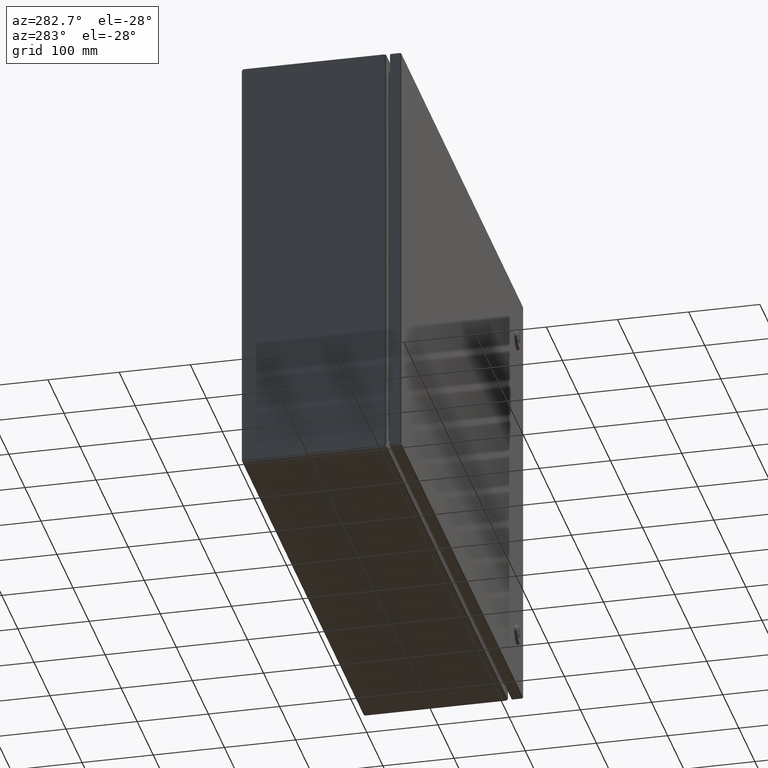
[diagram: clean part render]
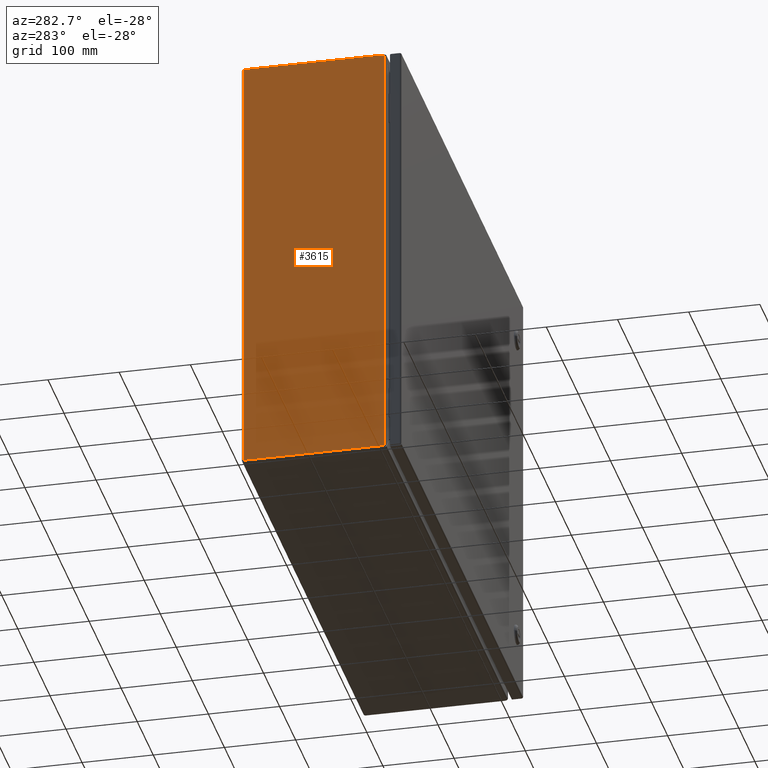
[diagram: same view with one face highlighted and labeled with its STEP entity id]
A machine part, auxiliary view. The second image highlights one B-rep face of the part: STEP entity #3615.
In plain terms, the highlighted planar face has unit normal (1, -0, 0).
Its self-contained STEP definition (entity closure, byte-faithful):
#599 = VERTEX_POINT ( 'NONE', #4599 ) ;
#795 = ORIENTED_EDGE ( 'NONE', *, *, #5526, .F. ) ;
#951 = EDGE_CURVE ( 'NONE', #9458, #7703, #15261, .T. ) ;
#1227 = DIRECTION ( 'NONE',  ( 1.000000000000000000, -2.832769448823989808E-16, 4.811188510611440132E-17 ) ) ;
#1309 = CARTESIAN_POINT ( 'NONE',  ( -15.00000000000000000, -7.763222692652924195, 11.92788864460137965 ) ) ;
#1365 = CARTESIAN_POINT ( 'NONE',  ( -15.00000000000000000, -0.1080000000000023580, -11.92788864460137965 ) ) ;
#1484 = ORIENTED_EDGE ( 'NONE', *, *, #24027, .F. ) ;
#2987 = LINE ( 'NONE', #4981, #24738 ) ;
#3387 = VECTOR ( 'NONE', #13035, 39.37007874015748143 ) ;
#3479 = CARTESIAN_POINT ( 'NONE',  ( -15.00000000000000000, -0.1079999999999999988, 11.92788864460137965 ) ) ;
#3615 = ADVANCED_FACE ( 'NONE', ( #10307 ), #16408, .F. ) ;
#3639 = VECTOR ( 'NONE', #11556, 39.37007874015748143 ) ;
#3835 = DIRECTION ( 'NONE',  ( 0.0000000000000000000, -1.000000000000000000, 0.0000000000000000000 ) ) ;
#3960 = DIRECTION ( 'NONE',  ( 1.000000000000000000, -2.781922600472770036E-16, 4.811188510611440132E-17 ) ) ;
#4599 = CARTESIAN_POINT ( 'NONE',  ( -15.00000000000000533, -7.892000000000001236, -11.90555033637158289 ) ) ;
#4981 = CARTESIAN_POINT ( 'NONE',  ( -15.00000000000000711, -7.891999999999999460, 83.29800000000001603 ) ) ;
#5526 = EDGE_CURVE ( 'NONE', #599, #26106, #16169, .T. ) ;
#5534 = AXIS2_PLACEMENT_3D ( 'NONE', #25204, #1227, #8907 ) ;
#5939 = CARTESIAN_POINT ( 'NONE',  ( -15.00000000000000533, -0.07200000000000078559, 83.29800000000001603 ) ) ;
#6532 = EDGE_CURVE ( 'NONE', #16127, #23711, #6908, .T. ) ;
#6908 = LINE ( 'NONE', #14983, #23637 ) ;
#7459 = LINE ( 'NONE', #3479, #3639 ) ;
#7523 = CARTESIAN_POINT ( 'NONE',  ( -15.00000000000000000, -7.763222692652924195, -11.92788864460137965 ) ) ;
#7703 = VERTEX_POINT ( 'NONE', #15490 ) ;
#8241 = ORIENTED_EDGE ( 'NONE', *, *, #8288, .T. ) ;
#8288 = EDGE_CURVE ( 'NONE', #16127, #26106, #14887, .T. ) ;
#8522 = CARTESIAN_POINT ( 'NONE',  ( -15.00000000000000000, -0.1079999999999995824, 11.92788864460137965 ) ) ;
#8907 = DIRECTION ( 'NONE',  ( 0.0000000000000000000, -1.000000000000000000, 0.0000000000000000000 ) ) ;
#9458 = VERTEX_POINT ( 'NONE', #1309 ) ;
#10307 = FACE_OUTER_BOUND ( 'NONE', #13298, .T. ) ;
#11556 = DIRECTION ( 'NONE',  ( -0.0000000000000000000, -1.000000000000000000, -0.0000000000000000000 ) ) ;
#13035 = DIRECTION ( 'NONE',  ( -0.0000000000000000000, -1.000000000000000000, -0.0000000000000000000 ) ) ;
#13298 = EDGE_LOOP ( 'NONE', ( #25448, #1484, #14039, #8241, #795, #26023 ) ) ;
#13638 = DIRECTION ( 'NONE',  ( 1.000000000000000000, -2.832769448823989808E-16, 4.811188510611440132E-17 ) ) ;
#14039 = ORIENTED_EDGE ( 'NONE', *, *, #6532, .F. ) ;
#14829 = AXIS2_PLACEMENT_3D ( 'NONE', #5939, #3960, #16148 ) ;
#14887 = LINE ( 'NONE', #22970, #3387 ) ;
#14983 = CARTESIAN_POINT ( 'NONE',  ( -15.00000000000000000, -0.1079999999999999710, -11.89200000000000124 ) ) ;
#15261 = CIRCLE ( 'NONE', #5534, 0.3823609811090009081 ) ;
#15490 = CARTESIAN_POINT ( 'NONE',  ( -15.00000000000000000, -7.892000000000001236, 11.90555033637158289 ) ) ;
#15772 = EDGE_CURVE ( 'NONE', #7703, #599, #2987, .T. ) ;
#16127 = VERTEX_POINT ( 'NONE', #1365 ) ;
#16148 = DIRECTION ( 'NONE',  ( -2.781922600472770036E-16, -1.000000000000000000, -1.703380046190513416E-32 ) ) ;
#16169 = CIRCLE ( 'NONE', #19126, 0.3823609811090009081 ) ;
#16408 = PLANE ( 'NONE',  #14829 ) ;
#17244 = DIRECTION ( 'NONE',  ( -6.123031769111889989E-17, 0.0000000000000000000, 1.000000000000000000 ) ) ;
#17635 = CARTESIAN_POINT ( 'NONE',  ( -15.00000000000000000, -7.763222692652933077, -11.54552766349240045 ) ) ;
#19126 = AXIS2_PLACEMENT_3D ( 'NONE', #17635, #13638, #3835 ) ;
#19153 = DIRECTION ( 'NONE',  ( 4.811188510611440132E-17, 3.649446409100244158E-33, -1.000000000000000000 ) ) ;
#22970 = CARTESIAN_POINT ( 'NONE',  ( -15.00000000000000000, -0.1079999999999999988, -11.92788864460137965 ) ) ;
#23637 = VECTOR ( 'NONE', #17244, 39.37007874015748143 ) ;
#23711 = VERTEX_POINT ( 'NONE', #8522 ) ;
#24027 = EDGE_CURVE ( 'NONE', #23711, #9458, #7459, .T. ) ;
#24738 = VECTOR ( 'NONE', #19153, 39.37007874015748143 ) ;
#25204 = CARTESIAN_POINT ( 'NONE',  ( -15.00000000000000000, -7.763222692652933077, 11.54552766349240045 ) ) ;
#25448 = ORIENTED_EDGE ( 'NONE', *, *, #951, .F. ) ;
#26023 = ORIENTED_EDGE ( 'NONE', *, *, #15772, .F. ) ;
#26106 = VERTEX_POINT ( 'NONE', #7523 ) ;